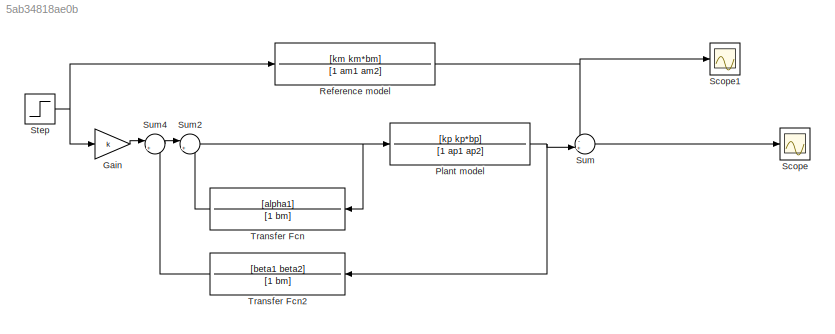
MODEL slx_5ab34818ae0b
KIND model
CONFIG AbsTol = auto
CONFIG EnableMultiTasking = off
CONFIG FixedStep = 1
CONFIG MaxStep = auto
CONFIG MinStep = auto
CONFIG PreLoadFcn = xcoilParameters.m
CONFIG RelTol = 1e-3
CONFIG SampleTimeConstraint = Unconstrained
CONFIG SolverName = VariableStepAuto
CONFIG StartTime = 0.0
CONFIG StopTime = 5000
BLOCK [Gain] Gain
  Gain = k
BLOCK [TransferFcn] Plant model
  Denominator = [1  ap1 ap2]
  Numerator = [kp kp*bp]
BLOCK [TransferFcn] Reference model
  Denominator = [1 am1 am2]
  Numerator = [km km*bm]
BLOCK [Scope] Scope
  Floating = off
  NumInputPorts = 1
  Ports = [1]
  ScopeSpecificationString = Simulink.scopes.TimeScopeBlockCfg('CurrentConfiguration', extmgr.ConfigurationSet(extmgr.Configuration('Core','General UI',true),extmgr.Configuration('Core','Source UI',true),extmgr.Configuration('Sources','WiredSimulink',true,'DataLoggingVariableName','ScopeData1'),extmgr.Configuration('Visuals','Time Domain',true,'SerializedDisplays',{struct('MinYLimReal','-0.1251','MaxYLimReal','1.12588','YLabe...<+1433ch>
BLOCK [Scope] Scope1
  Floating = off
  NumInputPorts = 1
  Ports = [1]
  ScopeSpecificationString = Simulink.scopes.TimeScopeBlockCfg('CurrentConfiguration', extmgr.ConfigurationSet(extmgr.Configuration('Core','General UI',true),extmgr.Configuration('Core','Source UI',true),extmgr.Configuration('Sources','WiredSimulink',true,'DataLoggingVariableName','ScopeData1'),extmgr.Configuration('Visuals','Time Domain',true,'SerializedDisplays',{struct('MinYLimReal','-0.12512','MaxYLimReal','1.12609','YLab...<+1422ch>
BLOCK [Step] Step
  SampleTime = 0
BLOCK [Sum] Sum
  Inputs = -+|
  Ports = [2, 1]
BLOCK [Sum] Sum2
  Inputs = |++
  Ports = [2, 1]
BLOCK [Sum] Sum4
  Inputs = |++
  Ports = [2, 1]
BLOCK [TransferFcn] Transfer Fcn
  Denominator = [1 bm]
  NameLocation = top
  Numerator = [alpha1]
BLOCK [TransferFcn] Transfer Fcn2
  Denominator = [1 bm]
  NameLocation = top
  Numerator = [beta1 beta2]
LINE Gain:1 -> Sum4:1
NET Plant model:1 -> Sum:2, Transfer Fcn2:1
NET Reference model:1 -> Scope1:1, Sum:1
NET Step:1 -> Gain:1, Reference model:1
NET Sum2:1 -> Plant model:1, Transfer Fcn:1
LINE Sum4:1 -> Sum2:1
LINE Sum:1 -> Scope:1
LINE Transfer Fcn2:1 -> Sum4:2
LINE Transfer Fcn:1 -> Sum2:2
note: NET lines group one-source signal fan-out (src -> all destinations, sorted); 1:1 wires keep LINE
